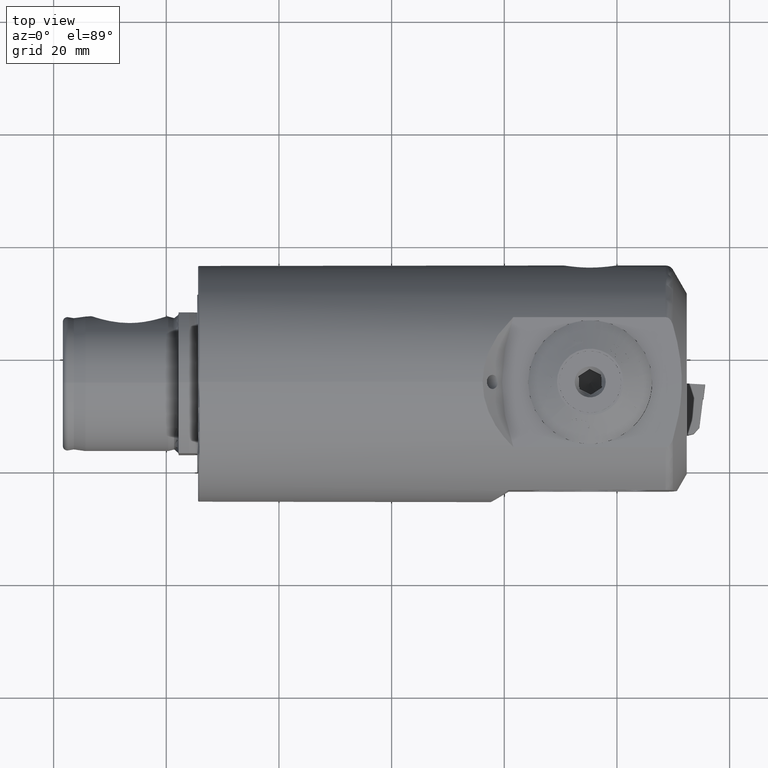
[diagram: clean part render]
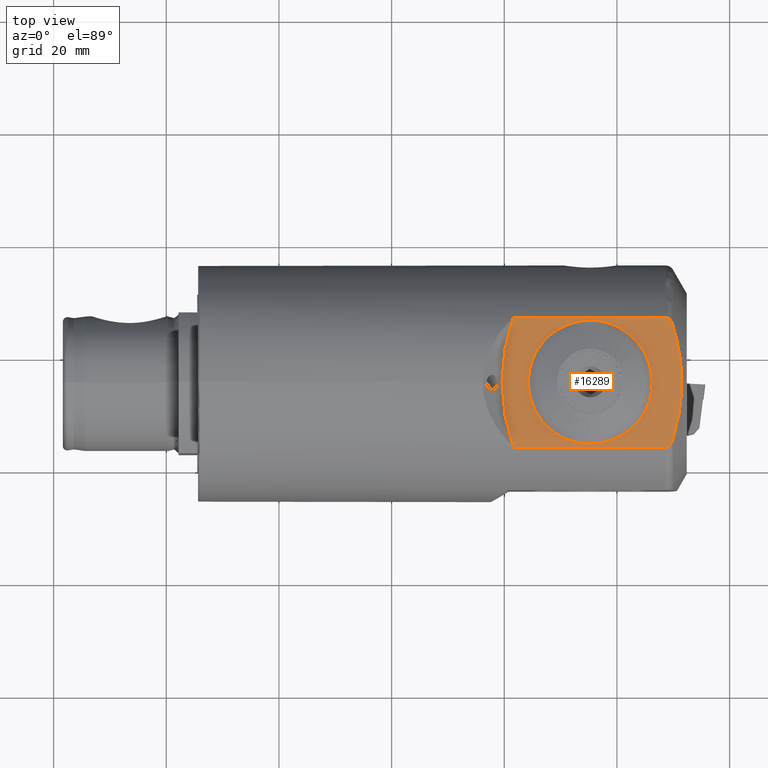
[diagram: same view with one face highlighted and labeled with its STEP entity id]
A machine part, top view. The second image highlights one B-rep face of the part: STEP entity #16289.
In plain terms, the highlighted planar face has unit normal (0, 0, 1).
Its self-contained STEP definition (entity closure, byte-faithful):
#70 = CARTESIAN_POINT ( 'NONE',  ( 83.16897653672883500, 11.53245420541524900, 17.54999999999999700 ) ) ;
#114 = EDGE_CURVE ( 'NONE', #32306, #29376, #35035, .T. ) ;
#119 = CARTESIAN_POINT ( 'NONE',  ( 83.01265986368956400, -4.015352460366515600, 17.54999999998290900 ) ) ;
#195 = CARTESIAN_POINT ( 'NONE',  ( 84.29626135594409700, 10.10247494428652400, 17.55000000000180200 ) ) ;
#208 = CARTESIAN_POINT ( 'NONE',  ( 84.29626135594409700, -10.10247494428963600, 17.54999999999999700 ) ) ;
#210 = CARTESIAN_POINT ( 'NONE',  ( 55.96558973499750800, 11.53245420541525900, 17.55000000000000100 ) ) ;
#378 = CARTESIAN_POINT ( 'NONE',  ( 81.04436602442895300, -8.065295177418896300, 17.54999999998290900 ) ) ;
#426 = VERTEX_POINT ( 'NONE', #210 ) ;
#537 = ORIENTED_EDGE ( 'NONE', *, *, #10726, .F. ) ;
#575 = VERTEX_POINT ( 'NONE', #1367 ) ;
#715 = DIRECTION ( 'NONE',  ( 1.000000000000000000, 0.0000000000000000000, 0.0000000000000000000 ) ) ;
#823 = EDGE_CURVE ( 'NONE', #10774, #6840, #7456, .T. ) ;
#1041 = AXIS2_PLACEMENT_3D ( 'NONE', #20012, #3371, #22771 ) ;
#1103 = ORIENTED_EDGE ( 'NONE', *, *, #114, .F. ) ;
#1318 = VECTOR ( 'NONE', #14658, 1000.000000000000000 ) ;
#1367 = CARTESIAN_POINT ( 'NONE',  ( 80.63721147721044200, -10.15886129481718200, 17.54999999999999700 ) ) ;
#1395 = DIRECTION ( 'NONE',  ( 0.8235325976284243500, -0.5672689491267608500, -1.156088178024649600E-015 ) ) ;
#1502 = DIRECTION ( 'NONE',  ( 0.0000000000000000000, 0.0000000000000000000, -1.000000000000000000 ) ) ;
#1738 = LINE ( 'NONE', #21254, #23011 ) ;
#1801 = DIRECTION ( 'NONE',  ( 0.0000000000000000000, 1.000000000000000000, 0.0000000000000000000 ) ) ;
#1909 = LINE ( 'NONE', #33667, #15007 ) ;
#2115 = DIRECTION ( 'NONE',  ( 1.000000000000000000, 8.881784197001252300E-016, 0.0000000000000000000 ) ) ;
#2300 = LINE ( 'NONE', #28183, #19685 ) ;
#2322 = CARTESIAN_POINT ( 'NONE',  ( 84.29626135594409700, -10.10247494428963600, 17.54999999999999700 ) ) ;
#2421 = VECTOR ( 'NONE', #34903, 1000.000000000000000 ) ;
#2617 = VECTOR ( 'NONE', #3010, 1000.000000000000100 ) ;
#2773 = EDGE_CURVE ( 'NONE', #11226, #13348, #24747, .T. ) ;
#2891 = CARTESIAN_POINT ( 'NONE',  ( 87.95000000000006000, 0.0000000000000000000, 17.55000000000000100 ) ) ;
#2937 = CARTESIAN_POINT ( 'NONE',  ( 84.53293073091144500, -9.280800202994450700, 17.54999999999999700 ) ) ;
#3010 = DIRECTION ( 'NONE',  ( -0.9548645447466422900, 0.2970415815770369700, 1.156088178024646300E-015 ) ) ;
#3326 = CIRCLE ( 'NONE', #19421, 11.00000000000001100 ) ;
#3345 = ORIENTED_EDGE ( 'NONE', *, *, #8106, .F. ) ;
#3361 = ORIENTED_EDGE ( 'NONE', *, *, #35310, .T. ) ;
#3371 = DIRECTION ( 'NONE',  ( 0.0000000000000000000, 0.0000000000000000000, -1.000000000000000000 ) ) ;
#3601 = CARTESIAN_POINT ( 'NONE',  ( 80.59897722517871400, 0.1500000000000095100, 17.54999999999999700 ) ) ;
#3631 = DIRECTION ( 'NONE',  ( 1.000000000000000000, 0.0000000000000000000, 0.0000000000000000000 ) ) ;
#3709 = DIRECTION ( 'NONE',  ( 0.0000000000000000000, 0.0000000000000000000, -1.000000000000000000 ) ) ;
#3748 = CARTESIAN_POINT ( 'NONE',  ( 69.59999999999999400, 0.0000000000000000000, 17.54999999999999700 ) ) ;
#3773 = CIRCLE ( 'NONE', #7058, 11.00000000000001100 ) ;
#3822 = VERTEX_POINT ( 'NONE', #28835 ) ;
#3919 = CARTESIAN_POINT ( 'NONE',  ( 83.41859058796269700, -2.251456009401319000, 17.54999999999999700 ) ) ;
#3946 = LINE ( 'NONE', #22744, #32485 ) ;
#3967 = AXIS2_PLACEMENT_3D ( 'NONE', #2891, #22282, #5734 ) ;
#4183 = ORIENTED_EDGE ( 'NONE', *, *, #9736, .T. ) ;
#4233 = CARTESIAN_POINT ( 'NONE',  ( 55.96558973499750800, -11.53245420541525800, 17.55000000000000100 ) ) ;
#4339 = CARTESIAN_POINT ( 'NONE',  ( 83.41859058796269700, -2.251456009401319000, 17.54999999998290900 ) ) ;
#4598 = EDGE_CURVE ( 'NONE', #30500, #21434, #35429, .T. ) ;
#4891 = VECTOR ( 'NONE', #16052, 999.9999999999998900 ) ;
#5030 = DIRECTION ( 'NONE',  ( 0.0000000000000000000, 0.0000000000000000000, -1.000000000000000000 ) ) ;
#5036 = CARTESIAN_POINT ( 'NONE',  ( 80.49669186237362300, -1.504030071667598900, 17.54999999999999700 ) ) ;
#5071 = LINE ( 'NONE', #9149, #32735 ) ;
#5140 = CARTESIAN_POINT ( 'NONE',  ( 83.46365826469890700, -1.954860485979944800, 17.54999999999999700 ) ) ;
#5734 = DIRECTION ( 'NONE',  ( 1.000000000000000000, 0.0000000000000000000, 0.0000000000000000000 ) ) ;
#5896 = CARTESIAN_POINT ( 'NONE',  ( 84.04750307952524200, -10.74252727777164300, 17.54999999999999700 ) ) ;
#5899 = CARTESIAN_POINT ( 'NONE',  ( 84.75016437790817700, -8.451607238582600000, 17.55000000000000100 ) ) ;
#6080 = VERTEX_POINT ( 'NONE', #4233 ) ;
#6097 = EDGE_CURVE ( 'NONE', #15296, #25545, #3326, .T. ) ;
#6151 = CARTESIAN_POINT ( 'NONE',  ( 85.13555683137809600, -6.774237940521164300, 17.54999999999999700 ) ) ;
#6244 = CARTESIAN_POINT ( 'NONE',  ( 78.57292594313831600, -6.362908141640549100, 17.54999999998291600 ) ) ;
#6530 = EDGE_CURVE ( 'NONE', #15652, #6840, #22396, .T. ) ;
#6619 = CARTESIAN_POINT ( 'NONE',  ( 85.30219523962685500, -5.931952278221434200, 17.54999999999999000 ) ) ;
#6840 = VERTEX_POINT ( 'NONE', #23652 ) ;
#7058 = AXIS2_PLACEMENT_3D ( 'NONE', #18152, #1502, #20939 ) ;
#7107 = CARTESIAN_POINT ( 'NONE',  ( 85.70912568458561500, -3.400808204949922000, 17.54999999999999700 ) ) ;
#7447 = ORIENTED_EDGE ( 'NONE', *, *, #6097, .T. ) ;
#7456 = CIRCLE ( 'NONE', #10421, 11.00000000000001100 ) ;
#7662 = EDGE_CURVE ( 'NONE', #10774, #20296, #21049, .T. ) ;
#7669 = VERTEX_POINT ( 'NONE', #27459 ) ;
#7691 = CARTESIAN_POINT ( 'NONE',  ( 80.45162418563741400, -1.800625595088971400, 17.54999999998290900 ) ) ;
#7988 = CARTESIAN_POINT ( 'NONE',  ( 85.85526397673291400, -1.704307913856387900, 17.54999999999999400 ) ) ;
#8106 = EDGE_CURVE ( 'NONE', #13746, #19780, #27056, .T. ) ;
#8145 = ORIENTED_EDGE ( 'NONE', *, *, #35356, .F. ) ;
#8222 = DIRECTION ( 'NONE',  ( 0.6845471059286861700, 0.7289686274214138800, 0.0000000000000000000 ) ) ;
#8290 = CARTESIAN_POINT ( 'NONE',  ( 83.01265986368956400, -4.015352460366519200, 17.54999999999999700 ) ) ;
#8370 = CARTESIAN_POINT ( 'NONE',  ( 82.92354738921645200, -4.301811823790506800, 17.54999999999999700 ) ) ;
#8462 = CARTESIAN_POINT ( 'NONE',  ( 85.85502844288052400, 0.8563479830077034300, 17.54999999999999700 ) ) ;
#8564 = CARTESIAN_POINT ( 'NONE',  ( 83.34066358401298700, 11.47489753862093700, 17.54999999999999700 ) ) ;
#8699 = CARTESIAN_POINT ( 'NONE',  ( 83.75510321439588800, -11.16600177734703300, 17.55000000000000400 ) ) ;
#8974 = B_SPLINE_CURVE_WITH_KNOTS ( 'NONE', 3,
 ( #208, #16918, #22448, #5896, #25230, #8699, #27986, #11468, #30770, #14265, #33524, #17025 ),
 .UNSPECIFIED., .F., .F.,
 ( 4, 2, 2, 2, 2, 4 ),
 ( 0.01546044723601909700, 0.01597569890576179500, 0.01649095057550449600, 0.01700620224524719600, 0.01726382808011856000, 0.01752145391498992700 ),
 .UNSPECIFIED. ) ;
#9149 = CARTESIAN_POINT ( 'NONE',  ( 80.63721147721044200, -10.15886129481717900, 17.54999999998291200 ) ) ;
#9159 = CARTESIAN_POINT ( 'NONE',  ( 69.59999999999999400, 0.0000000000000000000, 17.54999999999999700 ) ) ;
#9186 = DIRECTION ( 'NONE',  ( 0.0000000000000000000, 0.0000000000000000000, -1.000000000000000000 ) ) ;
#9239 = DIRECTION ( 'NONE',  ( 1.000000000000000000, 8.881784197001252300E-016, 0.0000000000000000000 ) ) ;
#9259 = ORIENTED_EDGE ( 'NONE', *, *, #12141, .T. ) ;
#9266 = DIRECTION ( 'NONE',  ( -0.7289686274214085500, 0.6845471059286917200, 0.0000000000000000000 ) ) ;
#9643 = CARTESIAN_POINT ( 'NONE',  ( 85.81880793109581900, 1.712519559300300600, 17.54999999999999400 ) ) ;
#9667 = ORIENTED_EDGE ( 'NONE', *, *, #20843, .T. ) ;
#9736 = EDGE_CURVE ( 'NONE', #27083, #13348, #32130, .T. ) ;
#9795 = ORIENTED_EDGE ( 'NONE', *, *, #24619, .F. ) ;
#10029 = CIRCLE ( 'NONE', #1041, 11.00000000000001100 ) ;
#10107 = FACE_BOUND ( 'NONE', #25755, .T. ) ;
#10168 = ORIENTED_EDGE ( 'NONE', *, *, #7662, .F. ) ;
#10340 = ORIENTED_EDGE ( 'NONE', *, *, #11105, .F. ) ;
#10421 = AXIS2_PLACEMENT_3D ( 'NONE', #9159, #9186, #9239 ) ;
#10443 = CARTESIAN_POINT ( 'NONE',  ( 84.29626135594409700, -10.10247494428963600, 17.54999999999999700 ) ) ;
#10649 = DIRECTION ( 'NONE',  ( 0.0000000000000000000, -0.0000000000000000000, 1.000000000000000000 ) ) ;
#10726 = EDGE_CURVE ( 'NONE', #29376, #3822, #8974, .T. ) ;
#10774 = VERTEX_POINT ( 'NONE', #33884 ) ;
#11105 = EDGE_CURVE ( 'NONE', #31737, #11226, #12304, .T. ) ;
#11216 = CARTESIAN_POINT ( 'NONE',  ( 84.29626135594409700, 10.10247494428652400, 17.55000000000180200 ) ) ;
#11226 = VERTEX_POINT ( 'NONE', #8290 ) ;
#11271 = EDGE_CURVE ( 'NONE', #426, #6080, #29105, .T. ) ;
#11330 = CARTESIAN_POINT ( 'NONE',  ( 83.75603135793400600, 11.16490702586558300, 17.54999999999999700 ) ) ;
#11468 = CARTESIAN_POINT ( 'NONE',  ( 83.41218827199870100, -11.42937966468620600, 17.54999999999999700 ) ) ;
#11471 = CARTESIAN_POINT ( 'NONE',  ( 85.67506099150013200, 3.430031040587758100, 17.55000000000000100 ) ) ;
#11524 = ORIENTED_EDGE ( 'NONE', *, *, #4598, .F. ) ;
#11602 = LINE ( 'NONE', #15655, #2421 ) ;
#11656 = DIRECTION ( 'NONE',  ( 0.4371157666509312100, 0.8994052515663718500, 0.0000000000000000000 ) ) ;
#11927 = EDGE_CURVE ( 'NONE', #13065, #13344, #16166, .T. ) ;
#12141 = EDGE_CURVE ( 'NONE', #16069, #28365, #27095, .T. ) ;
#12304 = LINE ( 'NONE', #29767, #4891 ) ;
#12572 = VECTOR ( 'NONE', #14723, 1000.000000000000000 ) ;
#12675 = VECTOR ( 'NONE', #17073, 1000.000000000000100 ) ;
#13002 = DIRECTION ( 'NONE',  ( -1.000000000000000000, -0.0000000000000000000, -0.0000000000000000000 ) ) ;
#13065 = VERTEX_POINT ( 'NONE', #20740 ) ;
#13080 = AXIS2_PLACEMENT_3D ( 'NONE', #21628, #5030, #24393 ) ;
#13248 = EDGE_CURVE ( 'NONE', #27083, #26212, #31355, .T. ) ;
#13255 = CARTESIAN_POINT ( 'NONE',  ( 81.21454670916698100, -7.818235398130370100, 17.54999999999999700 ) ) ;
#13344 = VERTEX_POINT ( 'NONE', #13737 ) ;
#13348 = VERTEX_POINT ( 'NONE', #27462 ) ;
#13720 = VECTOR ( 'NONE', #32872, 1000.000000000000100 ) ;
#13737 = CARTESIAN_POINT ( 'NONE',  ( 79.55810524318226800, -4.672915574425232400, 17.54999999999999700 ) ) ;
#13746 = VERTEX_POINT ( 'NONE', #18150 ) ;
#13777 = VECTOR ( 'NONE', #13002, 1000.000000000000000 ) ;
#13873 = ORIENTED_EDGE ( 'NONE', *, *, #16909, .F. ) ;
#14055 = DIRECTION ( 'NONE',  ( -0.8235325976284266800, 0.5672689491267575200, 1.156088178024646300E-015 ) ) ;
#14132 = CARTESIAN_POINT ( 'NONE',  ( 84.04799152356831400, 10.74173150178135900, 17.54999999999999700 ) ) ;
#14265 = CARTESIAN_POINT ( 'NONE',  ( 83.16949825173715300, -11.51868890411041200, 17.55000000000000100 ) ) ;
#14387 = CARTESIAN_POINT ( 'NONE',  ( 85.56809191531905900, 4.283910488762710900, 17.54999999999999700 ) ) ;
#14627 = CARTESIAN_POINT ( 'NONE',  ( 85.15832868471896700, 6.814677251485144400, 17.54999999999999400 ) ) ;
#14647 = CARTESIAN_POINT ( 'NONE',  ( 77.51522726498855300, -7.638663321784905600, 17.54999999998291200 ) ) ;
#14658 = DIRECTION ( 'NONE',  ( -0.8994052515663698600, 0.4371157666509353200, 1.156088178024645900E-015 ) ) ;
#14723 = DIRECTION ( 'NONE',  ( 0.7289686274214108900, -0.6845471059286893900, 0.0000000000000000000 ) ) ;
#14751 = CARTESIAN_POINT ( 'NONE',  ( 84.76665050882910200, 8.469365947579538200, 17.55000000000000100 ) ) ;
#15007 = VECTOR ( 'NONE', #22708, 1000.000000000000200 ) ;
#15296 = VERTEX_POINT ( 'NONE', #16831 ) ;
#15353 = ORIENTED_EDGE ( 'NONE', *, *, #19158, .T. ) ;
#15496 = CARTESIAN_POINT ( 'NONE',  ( 82.99722325026742500, 11.53245420541524200, 17.54999999999999700 ) ) ;
#15652 = VERTEX_POINT ( 'NONE', #13255 ) ;
#15655 = CARTESIAN_POINT ( 'NONE',  ( 84.60000000000000900, 0.1500000000000008300, 17.54999999998290500 ) ) ;
#15843 = CARTESIAN_POINT ( 'NONE',  ( 69.59999999999999400, 0.0000000000000000000, 17.54999999999999700 ) ) ;
#15848 = DIRECTION ( 'NONE',  ( 1.000000000000000000, -1.734280031489491500E-015, -8.671400157447457600E-016 ) ) ;
#16031 = VECTOR ( 'NONE', #715, 1000.000000000000000 ) ;
#16052 = DIRECTION ( 'NONE',  ( 0.2970415815770525700, 0.9548645447466375100, 0.0000000000000000000 ) ) ;
#16069 = VERTEX_POINT ( 'NONE', #34299 ) ;
#16166 = LINE ( 'NONE', #28373, #1318 ) ;
#16289 = ADVANCED_FACE ( 'NONE', ( #23064, #10107 ), #27187, .T. ) ;
#16394 = ORIENTED_EDGE ( 'NONE', *, *, #35672, .F. ) ;
#16760 = EDGE_CURVE ( 'NONE', #30500, #15296, #20046, .T. ) ;
#16830 = CARTESIAN_POINT ( 'NONE',  ( 81.21454670916698100, -7.818235398130365600, 17.54999999998290900 ) ) ;
#16831 = CARTESIAN_POINT ( 'NONE',  ( 58.59999999999998700, 1.347111479062089800E-015, 17.54999999999999700 ) ) ;
#16904 = CARTESIAN_POINT ( 'NONE',  ( 84.24905816378208100, 10.26635618457891200, 17.54999999999999700 ) ) ;
#16909 = EDGE_CURVE ( 'NONE', #19346, #32306, #28474, .T. ) ;
#16918 = CARTESIAN_POINT ( 'NONE',  ( 84.24881504464438800, -10.26720025176967400, 17.55000000000000100 ) ) ;
#17025 = CARTESIAN_POINT ( 'NONE',  ( 82.99722325026498000, -11.53245420541949300, 17.54999999999999700 ) ) ;
#17073 = DIRECTION ( 'NONE',  ( 0.5672689491267736100, 0.8235325976284155700, 0.0000000000000000000 ) ) ;
#17092 = CARTESIAN_POINT ( 'NONE',  ( 82.12610615693154200, -6.254531520848068700, 17.54999999999999700 ) ) ;
#17274 = ORIENTED_EDGE ( 'NONE', *, *, #24968, .F. ) ;
#17640 = LINE ( 'NONE', #4339, #32309 ) ;
#18150 = CARTESIAN_POINT ( 'NONE',  ( 84.60000000000000900, -0.1499999999999990800, 17.54999999999999700 ) ) ;
#18152 = CARTESIAN_POINT ( 'NONE',  ( 69.59999999999999400, 0.0000000000000000000, 17.54999999999999700 ) ) ;
#18472 = VERTEX_POINT ( 'NONE', #25070 ) ;
#18569 = DIRECTION ( 'NONE',  ( 1.000000000000000000, 0.0000000000000000000, 0.0000000000000000000 ) ) ;
#18747 = DIRECTION ( 'NONE',  ( 0.0000000000000000000, 0.0000000000000000000, -1.000000000000000000 ) ) ;
#19137 = CARTESIAN_POINT ( 'NONE',  ( 79.42697051318698700, -4.942737149895144500, 17.54999999998291200 ) ) ;
#19158 = EDGE_CURVE ( 'NONE', #6080, #3822, #22482, .T. ) ;
#19346 = VERTEX_POINT ( 'NONE', #15496 ) ;
#19421 = AXIS2_PLACEMENT_3D ( 'NONE', #3748, #3709, #3631 ) ;
#19447 = DIRECTION ( 'NONE',  ( 0.9548645447466426200, -0.2970415815770358600, -1.156088178024646700E-015 ) ) ;
#19685 = VECTOR ( 'NONE', #11656, 1000.000000000000000 ) ;
#19744 = CARTESIAN_POINT ( 'NONE',  ( 80.45162418563741400, -1.800625595088971400, 17.54999999998291200 ) ) ;
#19780 = VERTEX_POINT ( 'NONE', #20282 ) ;
#20012 = CARTESIAN_POINT ( 'NONE',  ( 69.59999999999999400, 0.0000000000000000000, 17.54999999999999700 ) ) ;
#20046 = CIRCLE ( 'NONE', #20576, 11.00000000000001100 ) ;
#20282 = CARTESIAN_POINT ( 'NONE',  ( 84.60000000000000900, 0.1500000000000008300, 17.54999999999999700 ) ) ;
#20296 = VERTEX_POINT ( 'NONE', #17092 ) ;
#20382 = VERTEX_POINT ( 'NONE', #5140 ) ;
#20544 = VERTEX_POINT ( 'NONE', #6244 ) ;
#20576 = AXIS2_PLACEMENT_3D ( 'NONE', #15843, #35092, #18569 ) ;
#20602 = EDGE_CURVE ( 'NONE', #575, #26572, #5071, .T. ) ;
#20740 = CARTESIAN_POINT ( 'NONE',  ( 82.25724088692682300, -5.984709945378160300, 17.54999999999999700 ) ) ;
#20843 = EDGE_CURVE ( 'NONE', #19346, #426, #35750, .T. ) ;
#20939 = DIRECTION ( 'NONE',  ( 1.000000000000000000, -8.881784197001252300E-016, 0.0000000000000000000 ) ) ;
#21049 = LINE ( 'NONE', #19137, #13720 ) ;
#21254 = CARTESIAN_POINT ( 'NONE',  ( 80.59897722517872900, -0.1499999999999921400, 17.54999999998290900 ) ) ;
#21396 = ORIENTED_EDGE ( 'NONE', *, *, #11271, .T. ) ;
#21434 = VERTEX_POINT ( 'NONE', #32114 ) ;
#21562 = DIRECTION ( 'NONE',  ( 0.9886517447379135100, -0.1502255891207597600, 0.0000000000000000000 ) ) ;
#21628 = CARTESIAN_POINT ( 'NONE',  ( 69.59999999999999400, 0.0000000000000000000, 17.54999999999999700 ) ) ;
#21707 = EDGE_CURVE ( 'NONE', #20382, #28365, #1909, .T. ) ;
#21820 = ORIENTED_EDGE ( 'NONE', *, *, #2773, .F. ) ;
#22275 = AXIS2_PLACEMENT_3D ( 'NONE', #35269, #18747, #2115 ) ;
#22282 = DIRECTION ( 'NONE',  ( -0.0000000000000000000, -0.0000000000000000000, 1.000000000000000000 ) ) ;
#22331 = CARTESIAN_POINT ( 'NONE',  ( 84.29626135594409700, 10.10247494428652400, 17.55000000000180200 ) ) ;
#22343 = EDGE_CURVE ( 'NONE', #20544, #18472, #23146, .T. ) ;
#22379 = ORIENTED_EDGE ( 'NONE', *, *, #22343, .F. ) ;
#22396 = LINE ( 'NONE', #16830, #28853 ) ;
#22448 = CARTESIAN_POINT ( 'NONE',  ( 84.19069838455809000, -10.43015804033472400, 17.54999999999999400 ) ) ;
#22482 = LINE ( 'NONE', #33922, #16031 ) ;
#22597 = EDGE_CURVE ( 'NONE', #20296, #13065, #2300, .T. ) ;
#22708 = DIRECTION ( 'NONE',  ( -0.9886517447379135100, 0.1502255891207598900, 0.0000000000000000000 ) ) ;
#22744 = CARTESIAN_POINT ( 'NONE',  ( 80.05797714356241100, -3.410383272408886500, 17.54999999998291200 ) ) ;
#22771 = DIRECTION ( 'NONE',  ( 1.000000000000000000, 3.552713678800500900E-015, 0.0000000000000000000 ) ) ;
#23011 = VECTOR ( 'NONE', #15848, 1000.000000000000000 ) ;
#23064 = FACE_OUTER_BOUND ( 'NONE', #29168, .T. ) ;
#23146 = LINE ( 'NONE', #26263, #30482 ) ;
#23652 = CARTESIAN_POINT ( 'NONE',  ( 78.74310662787634400, -6.115848362352020100, 17.54999999999999700 ) ) ;
#24026 = VECTOR ( 'NONE', #21562, 1000.000000000000200 ) ;
#24121 = CARTESIAN_POINT ( 'NONE',  ( 84.60000000000000900, -0.1499999999999990800, 17.54999999998290500 ) ) ;
#24361 = ORIENTED_EDGE ( 'NONE', *, *, #6530, .F. ) ;
#24393 = DIRECTION ( 'NONE',  ( 1.000000000000000000, 0.0000000000000000000, 0.0000000000000000000 ) ) ;
#24619 = EDGE_CURVE ( 'NONE', #18472, #15652, #29063, .T. ) ;
#24747 = LINE ( 'NONE', #119, #2617 ) ;
#24892 = ORIENTED_EDGE ( 'NONE', *, *, #30608, .F. ) ;
#24968 = EDGE_CURVE ( 'NONE', #21434, #575, #34208, .T. ) ;
#25070 = CARTESIAN_POINT ( 'NONE',  ( 81.04436602442895300, -8.065295177418896300, 17.54999999999999700 ) ) ;
#25083 = CARTESIAN_POINT ( 'NONE',  ( 77.72059139676716200, -7.419972733558476600, 17.54999999999999700 ) ) ;
#25230 = CARTESIAN_POINT ( 'NONE',  ( 83.96323455258463800, -10.89135179306425400, 17.54999999999999700 ) ) ;
#25349 = VECTOR ( 'NONE', #1801, 1000.000000000000000 ) ;
#25545 = VERTEX_POINT ( 'NONE', #3601 ) ;
#25755 = EDGE_LOOP ( 'NONE', ( #17274, #11524, #25912, #7447, #16394, #3345, #24892, #9259, #27452, #8145, #34535, #4183, #21820, #10340, #25764, #3361, #29010, #31453, #10168, #30912, #24361, #9795, #22379, #27622, #33698 ) ) ;
#25764 = ORIENTED_EDGE ( 'NONE', *, *, #25976, .F. ) ;
#25912 = ORIENTED_EDGE ( 'NONE', *, *, #16760, .T. ) ;
#25976 = EDGE_CURVE ( 'NONE', #7669, #31737, #3946, .T. ) ;
#26212 = VERTEX_POINT ( 'NONE', #3919 ) ;
#26263 = CARTESIAN_POINT ( 'NONE',  ( 78.57292594313831600, -6.362908141640550900, 17.54999999998291200 ) ) ;
#26572 = VERTEX_POINT ( 'NONE', #25083 ) ;
#27056 = LINE ( 'NONE', #24121, #25349 ) ;
#27083 = VERTEX_POINT ( 'NONE', #19744 ) ;
#27095 = CIRCLE ( 'NONE', #13080, 11.00000000000001100 ) ;
#27187 = PLANE ( 'NONE',  #34879 ) ;
#27452 = ORIENTED_EDGE ( 'NONE', *, *, #21707, .F. ) ;
#27459 = CARTESIAN_POINT ( 'NONE',  ( 80.05797714356241100, -3.410383272408886500, 17.54999999998291200 ) ) ;
#27462 = CARTESIAN_POINT ( 'NONE',  ( 80.14708961803552300, -3.123923908984893100, 17.54999999999999700 ) ) ;
#27622 = ORIENTED_EDGE ( 'NONE', *, *, #31278, .T. ) ;
#27734 = CARTESIAN_POINT ( 'NONE',  ( 82.99722325026742500, 11.53245420541524200, 17.54999999999999700 ) ) ;
#27850 = CARTESIAN_POINT ( 'NONE',  ( 83.63271794456279900, 11.28961538943946500, 17.54999999999999400 ) ) ;
#27986 = CARTESIAN_POINT ( 'NONE',  ( 83.63178656593581200, -11.29048633010348900, 17.54999999999999700 ) ) ;
#28183 = CARTESIAN_POINT ( 'NONE',  ( 82.12610615693154200, -6.254531520848067000, 17.54999999998290900 ) ) ;
#28365 = VERTEX_POINT ( 'NONE', #5036 ) ;
#28373 = CARTESIAN_POINT ( 'NONE',  ( 82.25724088692682300, -5.984709945378159400, 17.54999999998290900 ) ) ;
#28474 = B_SPLINE_CURVE_WITH_KNOTS ( 'NONE', 3,
 ( #27734, #70, #8564, #27850, #11330, #30634, #14132, #33391, #16904, #195 ),
 .UNSPECIFIED., .F., .F.,
 ( 4, 2, 2, 2, 4 ),
 ( 0.009026093165646802500, 0.009547082965118665700, 0.01006807276459053100, 0.01058906256406239400, 0.01111005236353425700 ),
 .UNSPECIFIED. ) ;
#28835 = CARTESIAN_POINT ( 'NONE',  ( 82.99722325026498000, -11.53245420541949300, 17.54999999999999700 ) ) ;
#28853 = VECTOR ( 'NONE', #14055, 1000.000000000000100 ) ;
#29010 = ORIENTED_EDGE ( 'NONE', *, *, #11927, .F. ) ;
#29063 = LINE ( 'NONE', #378, #12675 ) ;
#29105 = CIRCLE ( 'NONE', #3967, 34.00000000000000000 ) ;
#29168 = EDGE_LOOP ( 'NONE', ( #15353, #537, #1103, #13873, #9667, #21396 ) ) ;
#29243 = DIRECTION ( 'NONE',  ( 0.1502255891207289500, 0.9886517447379182800, 0.0000000000000000000 ) ) ;
#29376 = VERTEX_POINT ( 'NONE', #10443 ) ;
#29767 = CARTESIAN_POINT ( 'NONE',  ( 82.92354738921645200, -4.301811823790506800, 17.54999999998290900 ) ) ;
#29837 = CARTESIAN_POINT ( 'NONE',  ( 87.95000000000006000, 0.0000000000000000000, 17.54999999999999700 ) ) ;
#29949 = DIRECTION ( 'NONE',  ( 1.000000000000000000, 0.0000000000000000000, 0.0000000000000000000 ) ) ;
#30482 = VECTOR ( 'NONE', #1395, 1000.000000000000200 ) ;
#30500 = VERTEX_POINT ( 'NONE', #31844 ) ;
#30608 = EDGE_CURVE ( 'NONE', #16069, #13746, #1738, .T. ) ;
#30634 = CARTESIAN_POINT ( 'NONE',  ( 83.96335430319317100, 10.89106308532231900, 17.55000000000000100 ) ) ;
#30770 = CARTESIAN_POINT ( 'NONE',  ( 83.33478798425483100, -11.46665708372150200, 17.54999999999999000 ) ) ;
#30912 = ORIENTED_EDGE ( 'NONE', *, *, #823, .T. ) ;
#31278 = EDGE_CURVE ( 'NONE', #20544, #26572, #10029, .T. ) ;
#31355 = LINE ( 'NONE', #7691, #24026 ) ;
#31453 = ORIENTED_EDGE ( 'NONE', *, *, #22597, .F. ) ;
#31737 = VERTEX_POINT ( 'NONE', #8370 ) ;
#31844 = CARTESIAN_POINT ( 'NONE',  ( 77.51522726498855300, -7.638663321784906500, 17.54999999998291600 ) ) ;
#32114 = CARTESIAN_POINT ( 'NONE',  ( 80.43184734543183400, -10.37755188304360000, 17.54999999999999700 ) ) ;
#32130 = CIRCLE ( 'NONE', #22275, 11.00000000000001100 ) ;
#32270 = CARTESIAN_POINT ( 'NONE',  ( 4.875327310878582000, 11.53245420541525900, 17.54999999999999700 ) ) ;
#32306 = VERTEX_POINT ( 'NONE', #11216 ) ;
#32309 = VECTOR ( 'NONE', #29243, 1000.000000000000100 ) ;
#32485 = VECTOR ( 'NONE', #19447, 1000.000000000000100 ) ;
#32735 = VECTOR ( 'NONE', #9266, 1000.000000000000100 ) ;
#32872 = DIRECTION ( 'NONE',  ( 0.8994052515663700800, -0.4371157666509348800, -1.156088178024646100E-015 ) ) ;
#33391 = CARTESIAN_POINT ( 'NONE',  ( 84.19179837439172300, 10.42748577901043400, 17.55000000000000100 ) ) ;
#33524 = CARTESIAN_POINT ( 'NONE',  ( 83.08337975071739800, -11.53245420541633200, 17.54999999999999700 ) ) ;
#33667 = CARTESIAN_POINT ( 'NONE',  ( 83.46365826469890700, -1.954860485979943000, 17.54999999998290900 ) ) ;
#33698 = ORIENTED_EDGE ( 'NONE', *, *, #20602, .F. ) ;
#33884 = CARTESIAN_POINT ( 'NONE',  ( 79.42697051318698700, -4.942737149895139100, 17.54999999998291200 ) ) ;
#33922 = CARTESIAN_POINT ( 'NONE',  ( 4.875327310878582000, -11.53245420541525800, 17.54999999999999700 ) ) ;
#34208 = LINE ( 'NONE', #35355, #35075 ) ;
#34299 = CARTESIAN_POINT ( 'NONE',  ( 80.59897722517872900, -0.1499999999999921400, 17.54999999998290900 ) ) ;
#34535 = ORIENTED_EDGE ( 'NONE', *, *, #13248, .F. ) ;
#34879 = AXIS2_PLACEMENT_3D ( 'NONE', #29837, #10649, #29949 ) ;
#34903 = DIRECTION ( 'NONE',  ( -1.000000000000000000, 1.842672533457584800E-015, 8.671400157447457600E-016 ) ) ;
#35035 = B_SPLINE_CURVE_WITH_KNOTS ( 'NONE', 3,
 ( #22331, #14751, #14627, #14387, #11471, #9643, #8462, #7988, #7107, #6619, #6151, #5899, #2937, #2322 ),
 .UNSPECIFIED., .F., .F.,
 ( 4, 2, 2, 2, 2, 2, 4 ),
 ( 0.007616562620213344600, 0.01271465091046333200, 0.01526369505558832300, 0.01781273920071331500, 0.02291082749096329600, 0.02545987163608828800, 0.02800891578121328400 ),
 .UNSPECIFIED. ) ;
#35075 = VECTOR ( 'NONE', #8222, 1000.000000000000000 ) ;
#35092 = DIRECTION ( 'NONE',  ( 0.0000000000000000000, 0.0000000000000000000, -1.000000000000000000 ) ) ;
#35269 = CARTESIAN_POINT ( 'NONE',  ( 69.59999999999999400, 0.0000000000000000000, 17.54999999999999700 ) ) ;
#35310 = EDGE_CURVE ( 'NONE', #7669, #13344, #3773, .T. ) ;
#35355 = CARTESIAN_POINT ( 'NONE',  ( 80.43184734543183400, -10.37755188304360000, 17.54999999998291200 ) ) ;
#35356 = EDGE_CURVE ( 'NONE', #26212, #20382, #17640, .T. ) ;
#35429 = LINE ( 'NONE', #14647, #12572 ) ;
#35672 = EDGE_CURVE ( 'NONE', #19780, #25545, #11602, .T. ) ;
#35750 = LINE ( 'NONE', #32270, #13777 ) ;